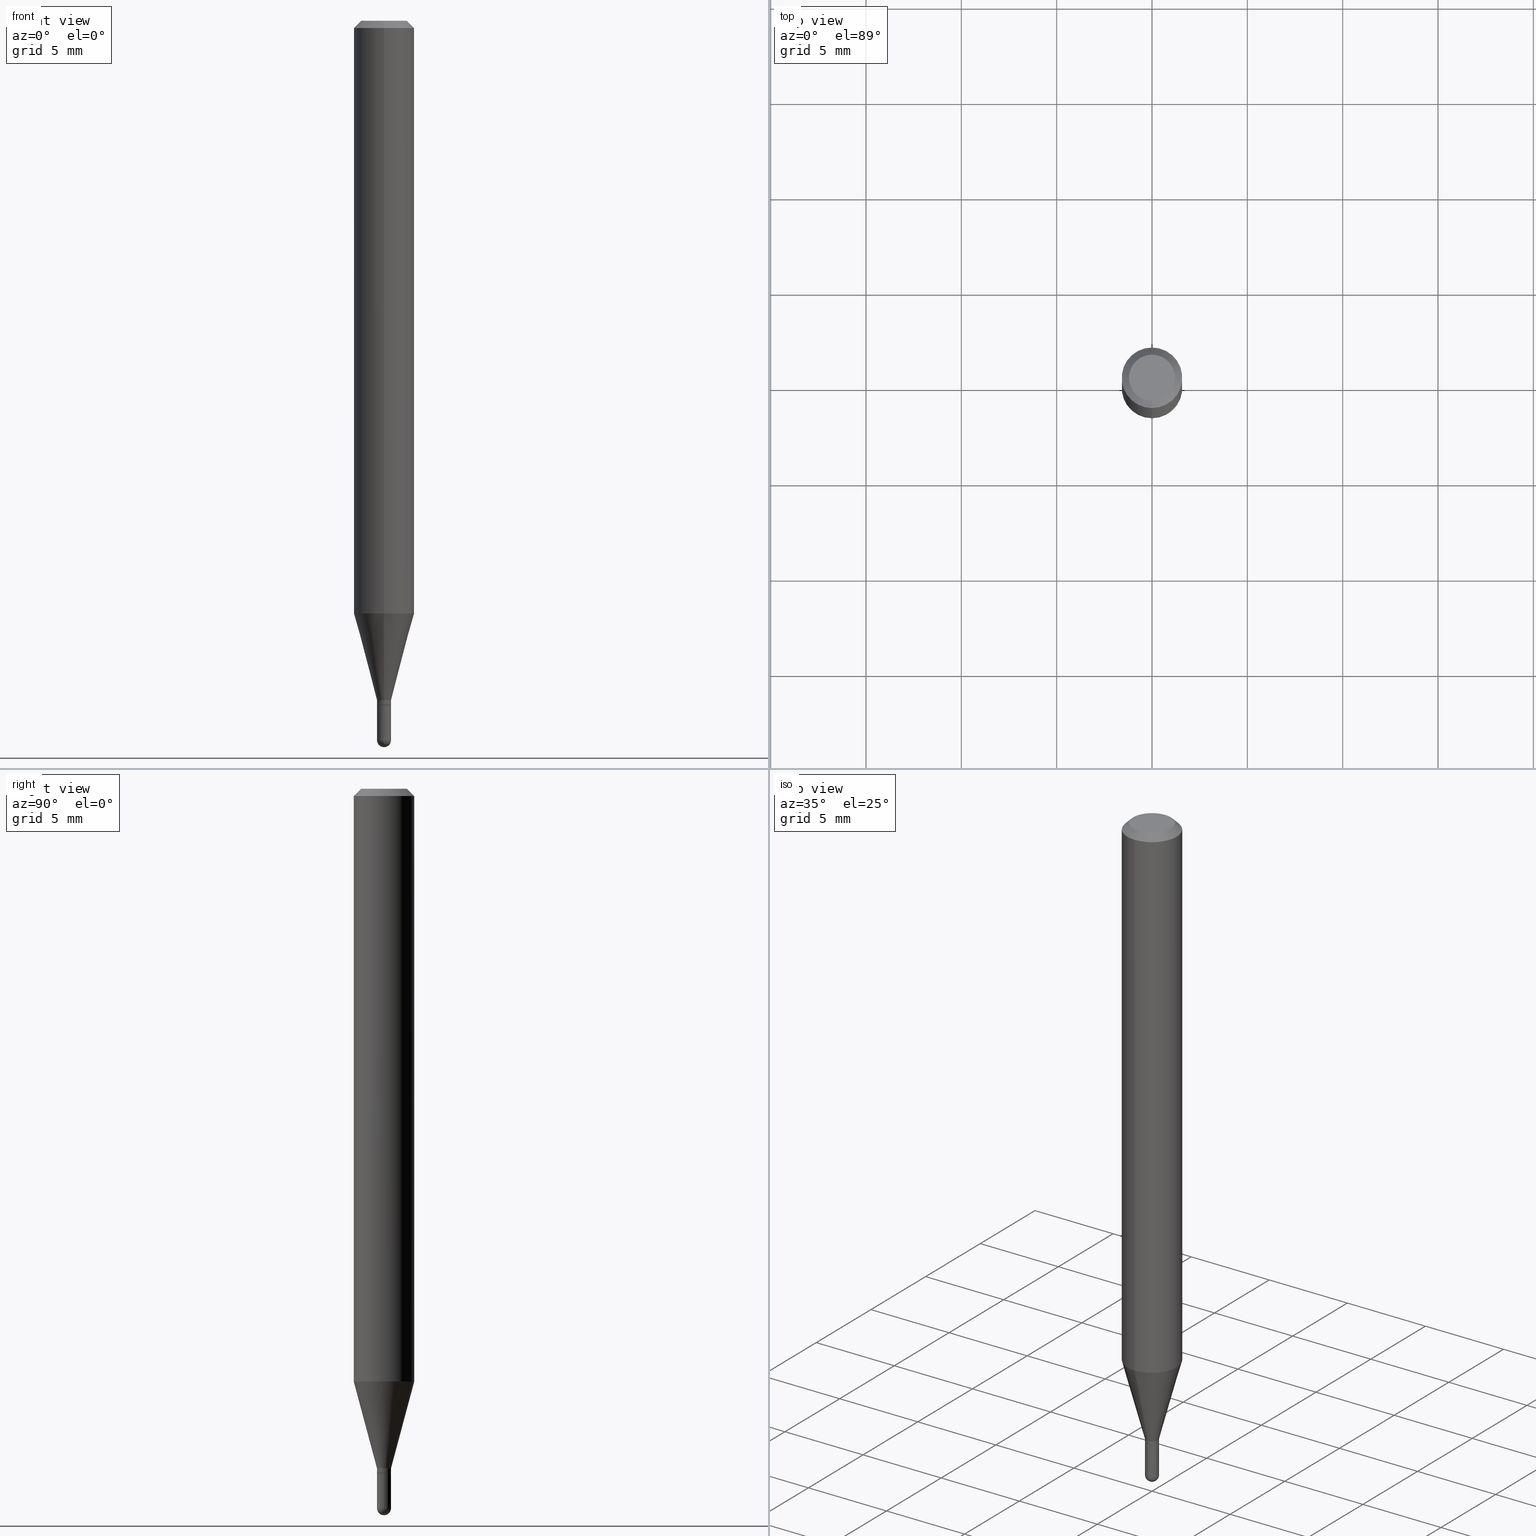
[diagram: canonical four-view strip — front | top / right | iso, engineering-drawing reading convention]
A machine part, canonical four-view strip (front | top / right | iso — engineering-drawing reading convention). The complete STEP part file that produces these views, byte-faithful:
ISO-10303-21;
HEADER;
FILE_DESCRIPTION (( 'STEP AP203' ),
    '1' );
FILE_NAME ('03164.STEP',
    '2024-03-08T18:25:38',
    ( '' ),
    ( '' ),
    'SwSTEP 2.0',
    'SolidWorks 2023',
    '' );
FILE_SCHEMA (( 'CONFIG_CONTROL_DESIGN' ));
ENDSEC;

DATA;
#1 = AXIS2_PLACEMENT_3D ( 'NONE', #476, #196, #314 ) ;
#2 = PLANE ( 'NONE',  #383 ) ;
#3 = CC_DESIGN_APPROVAL ( #62, ( #161 ) ) ;
#4 = PRODUCT_DEFINITION ( 'UNKNOWN', '', #161, #64 ) ;
#5 = DIRECTION ( 'NONE',  ( -6.982962677686265922E-15, -1.000000000000000000, 0.000000000000000000 ) ) ;
#6 = MANIFOLD_SOLID_BREP ( 'Body-Move/Copy2[1]', #174 ) ;
#7 = DIRECTION ( 'NONE',  ( -2.445457456841119029E-29, 3.491497591749743261E-15, 1.000000000000000000 ) ) ;
#8 = ORIENTED_EDGE ( 'NONE', *, *, #93, .F. ) ;
#9 = FACE_OUTER_BOUND ( 'NONE', #55, .T. ) ;
#10 = AXIS2_PLACEMENT_3D ( 'NONE', #311, #158, #5 ) ;
#11 = EDGE_LOOP ( 'NONE', ( #445, #137 ) ) ;
#12 = EDGE_CURVE ( 'NONE', #415, #58, #488, .T. ) ;
#13 = DIRECTION ( 'NONE',  ( -6.982962677686265922E-15, -1.000000000000000000, 0.000000000000000000 ) ) ;
#14 = ORIENTED_EDGE ( 'NONE', *, *, #204, .F. ) ;
#15 = ADVANCED_FACE ( 'NONE', ( #32 ), #464, .F. ) ;
#16 = DIRECTION ( 'NONE',  ( 1.000000000000000000, -6.982962677686265922E-15, 4.883557194083112340E-29 ) ) ;
#17 = ORIENTED_EDGE ( 'NONE', *, *, #120, .F. ) ;
#18 = DIRECTION ( 'NONE',  ( 6.982962677686265922E-15, 1.000000000000000000, -3.483106191921935554E-15 ) ) ;
#19 = ORIENTED_EDGE ( 'NONE', *, *, #390, .T. ) ;
#20 = DIRECTION ( 'NONE',  ( -2.445468806185136597E-29, 3.491481338843145583E-15, 1.000000000000000000 ) ) ;
#21 = EDGE_CURVE ( 'NONE', #334, #225, #457, .T. ) ;
#22 = EDGE_CURVE ( 'NONE', #292, #320, #153, .T. ) ;
#23 = DIRECTION ( 'NONE',  ( 1.000000000000000000, -6.982962677686299054E-15, 0.000000000000000000 ) ) ;
#24 = LINE ( 'NONE', #180, #61 ) ;
#25 = PRODUCT ( '03164', '03164', '', ( #468 ) ) ;
#26 = CARTESIAN_POINT ( 'NONE',  ( 1.012529588264854174E-16, 0.01449999999999506545, -1.413000000000000256 ) ) ;
#27 = ORIENTED_EDGE ( 'NONE', *, *, #12, .F. ) ;
#28 = CIRCLE ( 'NONE', #430, 0.01449999999999992441 ) ;
#29 = FACE_OUTER_BOUND ( 'NONE', #105, .T. ) ;
#30 = EDGE_LOOP ( 'NONE', ( #126, #129, #407, #254 ) ) ;
#31 = CARTESIAN_POINT ( 'NONE',  ( -1.012529588264160223E-16, -0.01450000000000482153, -1.402999999999999803 ) ) ;
#32 = FACE_OUTER_BOUND ( 'NONE', #309, .T. ) ;
#33 = APPROVAL_STATUS ( 'not_yet_approved' ) ;
#34 = DIRECTION ( 'NONE',  ( -6.982962677686265922E-15, -1.000000000000000000, 0.000000000000000000 ) ) ;
#35 = CIRCLE ( 'NONE', #1, 0.04749999999999999362 ) ;
#36 = ADVANCED_FACE ( 'NONE', ( #66 ), #403, .T. ) ;
#37 = DATE_AND_TIME ( #508, #272 ) ;
#38 = EDGE_CURVE ( 'NONE', #331, #41, #337, .T. ) ;
#39 = DIRECTION ( 'NONE',  ( -2.445457456841119029E-29, 3.491497591749743261E-15, 1.000000000000000000 ) ) ;
#40 = CYLINDRICAL_SURFACE ( 'NONE', #497, 0.01449999999999992441 ) ;
#41 = VERTEX_POINT ( 'NONE', #271 ) ;
#42 = DIRECTION ( 'NONE',  ( -6.982962677686265922E-15, -1.000000000000000000, 0.000000000000000000 ) ) ;
#43 = EDGE_CURVE ( 'NONE', #95, #331, #251, .T. ) ;
#44 = CONICAL_SURFACE ( 'NONE', #359, 0.06250000000000000000, 0.7853981633974483900 ) ;
#45 = VECTOR ( 'NONE', #338, 39.37007874015748143 ) ;
#46 = DIRECTION ( 'NONE',  ( -6.982962677686265922E-15, -1.000000000000000000, 4.370956789862821150E-15 ) ) ;
#47 = FACE_OUTER_BOUND ( 'NONE', #49, .T. ) ;
#48 = CARTESIAN_POINT ( 'NONE',  ( 1.030286966852139652E-16, 0.01449999999999992441, -5.062671508037101257E-17 ) ) ;
#49 = EDGE_LOOP ( 'NONE', ( #299, #308, #257, #17, #190 ) ) ;
#50 = CARTESIAN_POINT ( 'NONE',  ( 3.631503920468710854E-29, -5.188371266710256857E-15, -1.485500000000000043 ) ) ;
#51 = CIRCLE ( 'NONE', #78, 0.01450000000000000074 ) ;
#52 = VERTEX_POINT ( 'NONE', #241 ) ;
#53 = CC_DESIGN_SECURITY_CLASSIFICATION ( #71, ( #161 ) ) ;
#54 = LINE ( 'NONE', #48, #264 ) ;
#55 = EDGE_LOOP ( 'NONE', ( #374, #356, #389, #414 ) ) ;
#56 = EDGE_CURVE ( 'NONE', #334, #331, #472, .T. ) ;
#57 = DIRECTION ( 'NONE',  ( -2.445457456841119029E-29, 3.491497591749743261E-15, 1.000000000000000000 ) ) ;
#58 = VERTEX_POINT ( 'NONE', #511 ) ;
#59 = PRODUCT_RELATED_PRODUCT_CATEGORY ( 'detail', '', ( #25 ) ) ;
#60 = CARTESIAN_POINT ( 'NONE',  ( 3.455431386516501068E-29, -4.933486097142387201E-15, -1.413000000000000256 ) ) ;
#61 = VECTOR ( 'NONE', #454, 39.37007874015748854 ) ;
#62 = APPROVAL ( #33, 'UNSPECIFIED' ) ;
#63 =( LENGTH_UNIT ( ) NAMED_UNIT ( * ) SI_UNIT ( $, .METRE. ) );
#64 = DESIGN_CONTEXT ( 'detailed design', #83, 'design' ) ;
#65 = ORIENTED_EDGE ( 'NONE', *, *, #120, .T. ) ;
#66 = FACE_OUTER_BOUND ( 'NONE', #453, .T. ) ;
#67 = CARTESIAN_POINT ( 'NONE',  ( 3.632743911588020939E-29, -5.186595528851492996E-15, -1.485500000000000043 ) ) ;
#68 = CARTESIAN_POINT ( 'NONE',  ( 3.632743911588020939E-29, -5.186595528851492996E-15, -1.485500000000000043 ) ) ;
#69 = AXIS2_PLACEMENT_3D ( 'NONE', #318, #280, #352 ) ;
#70 = AXIS2_PLACEMENT_3D ( 'NONE', #368, #16, #13 ) ;
#71 = SECURITY_CLASSIFICATION ( '', '', #433 ) ;
#72 = DIRECTION ( 'NONE',  ( 1.000000000000000000, -6.982962677686299054E-15, 0.000000000000000000 ) ) ;
#73 = PERSON_AND_ORGANIZATION_ROLE ( 'design_supplier' ) ;
#74 = DIRECTION ( 'NONE',  ( 5.024295867788190974E-15, 0.7071067811865681119, 0.7071067811865270336 ) ) ;
#75 = ADVANCED_FACE ( 'NONE', ( #428 ), #40, .T. ) ;
#76 = APPROVAL_ROLE ( '' ) ;
#77 = CARTESIAN_POINT ( 'NONE',  ( 0.01450000000000000074, -5.161282289144880799E-15, -1.485500000000000043 ) ) ;
#78 = AXIS2_PLACEMENT_3D ( 'NONE', #121, #283, #313 ) ;
#79 = CC_DESIGN_PERSON_AND_ORGANIZATION_ASSIGNMENT ( #122, #357, ( #161 ) ) ;
#80 =( GEOMETRIC_REPRESENTATION_CONTEXT ( 3 ) GLOBAL_UNCERTAINTY_ASSIGNED_CONTEXT ( ( #236 ) ) GLOBAL_UNIT_ASSIGNED_CONTEXT ( ( #222, #418, #379 ) ) REPRESENTATION_CONTEXT ( 'NONE', 'WORKASPACE' ) );
#81 = APPLICATION_PROTOCOL_DEFINITION ( 'international standard', 'config_control_design', 1994, #83 ) ;
#82 = DIRECTION ( 'NONE',  ( 2.445457456841119029E-29, -3.491497591749743261E-15, -1.000000000000000000 ) ) ;
#83 = APPLICATION_CONTEXT ( 'configuration controlled 3d designs of mechanical parts and assemblies' ) ;
#84 = FACE_OUTER_BOUND ( 'NONE', #212, .T. ) ;
#85 = PERSON_AND_ORGANIZATION_ROLE ( 'creator' ) ;
#86 = CARTESIAN_POINT ( 'NONE',  ( 3.454208657788081865E-29, -4.931740348346512716E-15, -1.412500000000000311 ) ) ;
#87 = CLOSED_SHELL ( 'NONE', ( #483, #277, #346, #440, #417, #495, #324, #131, #127, #349, #36, #75 ) ) ;
#88 = AXIS2_PLACEMENT_3D ( 'NONE', #319, #247, #168 ) ;
#89 = DIRECTION ( 'NONE',  ( 1.000000000000000000, -6.982962677686299054E-15, 0.000000000000000000 ) ) ;
#90 = APPROVAL ( #344, 'UNSPECIFIED' ) ;
#91 = CARTESIAN_POINT ( 'NONE',  ( 0.000000000000000000, 0.000000000000000000, 0.000000000000000000 ) ) ;
#92 = ORIENTED_EDGE ( 'NONE', *, *, #134, .F. ) ;
#93 = EDGE_CURVE ( 'NONE', #487, #148, #270, .T. ) ;
#94 = DIRECTION ( 'NONE',  ( -6.982962677686265922E-15, -1.000000000000000000, 3.483106191921935554E-15 ) ) ;
#95 = VERTEX_POINT ( 'NONE', #77 ) ;
#96 = EDGE_CURVE ( 'NONE', #148, #487, #238, .T. ) ;
#97 = FACE_OUTER_BOUND ( 'NONE', #500, .T. ) ;
#98 = AXIS2_PLACEMENT_3D ( 'NONE', #67, #20, #333 ) ;
#99 = ORIENTED_EDGE ( 'NONE', *, *, #456, .F. ) ;
#100 = CYLINDRICAL_SURFACE ( 'NONE', #218, 0.01450000000000000074 ) ;
#101 = EDGE_CURVE ( 'NONE', #336, #214, #28, .T. ) ;
#102 = DIRECTION ( 'NONE',  ( -6.982962677686265922E-15, -1.000000000000000000, 0.000000000000000000 ) ) ;
#103 = EDGE_LOOP ( 'NONE', ( #182, #447, #366, #92 ) ) ;
#104 = DIRECTION ( 'NONE',  ( -6.982962677686265922E-15, -1.000000000000000000, 3.491497591749743261E-15 ) ) ;
#105 = EDGE_LOOP ( 'NONE', ( #152, #185, #409, #65, #27 ) ) ;
#106 = CIRCLE ( 'NONE', #245, 0.06250000000000000000 ) ;
#107 = LENGTH_MEASURE_WITH_UNIT ( LENGTH_MEASURE( 0.02539999999999999897 ), #63 );
#108 = DIRECTION ( 'NONE',  ( 1.000000000000000000, -6.982962677686299054E-15, 0.000000000000000000 ) ) ;
#109 = ORIENTED_EDGE ( 'NONE', *, *, #221, .T. ) ;
#110 = DIRECTION ( 'NONE',  ( -2.445457456841119029E-29, 3.491497591749743261E-15, 1.000000000000000000 ) ) ;
#111 = DIRECTION ( 'NONE',  ( -6.982962677686265922E-15, -1.000000000000000000, 0.000000000000000000 ) ) ;
#112 = AXIS2_PLACEMENT_3D ( 'NONE', #133, #446, #89 ) ;
#113 = CARTESIAN_POINT ( 'NONE',  ( 0.000000000000000000, 0.000000000000000000, 0.000000000000000000 ) ) ;
#114 = CARTESIAN_POINT ( 'NONE',  ( 2.735589532676705169E-16, 0.01449999999999502555, -1.402999999999999803 ) ) ;
#115 = COORDINATED_UNIVERSAL_TIME_OFFSET ( 5, 0, .BEHIND. ) ;
#116 = CARTESIAN_POINT ( 'NONE',  ( 0.01450000000000000074, -1.012529588264508678E-16, 7.070456324904107110E-31 ) ) ;
#117 = APPROVAL_ROLE ( '' ) ;
#118 = DIRECTION ( 'NONE',  ( -2.445457456841119029E-29, 3.491497591749743261E-15, 1.000000000000000000 ) ) ;
#119 = DIRECTION ( 'NONE',  ( 0.000000000000000000, 0.000000000000000000, 1.000000000000000000 ) ) ;
#120 = EDGE_CURVE ( 'NONE', #95, #58, #350, .T. ) ;
#121 = CARTESIAN_POINT ( 'NONE',  ( 3.455447423139598357E-29, -4.933463131785365512E-15, -1.413000000000000256 ) ) ;
#122 = PERSON_AND_ORGANIZATION ( #438, #145 ) ;
#123 = DIRECTION ( 'NONE',  ( 4.937700262164548042E-15, 0.7071067811865451302, -0.7071067811865499042 ) ) ;
#124 = CARTESIAN_POINT ( 'NONE',  ( 4.440892098500927901E-16, 0.06249999999999995837, -0.01499999999999997863 ) ) ;
#125 = AXIS2_PLACEMENT_3D ( 'NONE', #164, #39, #317 ) ;
#126 = ORIENTED_EDGE ( 'NONE', *, *, #56, .F. ) ;
#127 = ADVANCED_FACE ( 'NONE', ( #507 ), #2, .F. ) ;
#128 = CARTESIAN_POINT ( 'NONE',  ( 3.668186185261620372E-31, -5.237246387624531296E-17, -0.01499999999999976179 ) ) ;
#129 = ORIENTED_EDGE ( 'NONE', *, *, #21, .T. ) ;
#130 = DIRECTION ( 'NONE',  ( -2.445457456841119029E-29, 3.491497591749742866E-15, 1.000000000000000000 ) ) ;
#131 = ADVANCED_FACE ( 'NONE', ( #284 ), #44, .T. ) ;
#132 = VERTEX_POINT ( 'NONE', #355 ) ;
#133 = CARTESIAN_POINT ( 'NONE',  ( 3.632743911588020939E-29, -5.186595528851492996E-15, -1.485500000000000043 ) ) ;
#134 = EDGE_CURVE ( 'NONE', #52, #336, #394, .T. ) ;
#135 = VECTOR ( 'NONE', #207, 39.37007874015748143 ) ;
#136 = LOCAL_TIME ( 13, 25, 38.00000000000000000, #115 ) ;
#137 = ORIENTED_EDGE ( 'NONE', *, *, #395, .F. ) ;
#138 = CYLINDRICAL_SURFACE ( 'NONE', #329, 0.01450000000000000074 ) ;
#139 = EDGE_LOOP ( 'NONE', ( #345, #169 ) ) ;
#140 = CARTESIAN_POINT ( 'NONE',  ( 3.668186185261620372E-31, -5.237246387624531296E-17, -0.01499999999999976179 ) ) ;
#141 = VERTEX_POINT ( 'NONE', #163 ) ;
#142 = CARTESIAN_POINT ( 'NONE',  ( 0.000000000000000000, 0.000000000000000000, 0.000000000000000000 ) ) ;
#143 = DIRECTION ( 'NONE',  ( -1.000000000000000000, 6.982962677686265922E-15, -4.883557194083112340E-29 ) ) ;
#144 = AXIS2_PLACEMENT_3D ( 'NONE', #378, #461, #23 ) ;
#145 = ORGANIZATION ( 'UNSPECIFIED', 'UNSPECIFIED', '' ) ;
#146 = EDGE_CURVE ( 'NONE', #292, #340, #426, .T. ) ;
#147 = CYLINDRICAL_SURFACE ( 'NONE', #297, 0.06250000000000000000 ) ;
#148 = VERTEX_POINT ( 'NONE', #400 ) ;
#149 = FACE_OUTER_BOUND ( 'NONE', #382, .T. ) ;
#150 = DIRECTION ( 'NONE',  ( -2.445468806185136597E-29, 3.491481338843145583E-15, 1.000000000000000000 ) ) ;
#151 = COORDINATED_UNIVERSAL_TIME_OFFSET ( 5, 0, .BEHIND. ) ;
#152 = ORIENTED_EDGE ( 'NONE', *, *, #260, .F. ) ;
#153 = CIRCLE ( 'NONE', #193, 0.04749999999999999362 ) ;
#154 = CIRCLE ( 'NONE', #112, 0.01450000000000000074 ) ;
#155 = CALENDAR_DATE ( 2024, 8, 3 ) ;
#156 = CARTESIAN_POINT ( 'NONE',  ( 3.316907271900976096E-16, 0.04749999999999999362, -4.610142825763763803E-17 ) ) ;
#157 = PERSON_AND_ORGANIZATION ( #438, #145 ) ;
#158 = DIRECTION ( 'NONE',  ( -2.445457456841119029E-29, 3.491497591749743261E-15, 1.000000000000000000 ) ) ;
#159 = DATE_AND_TIME ( #512, #136 ) ;
#160 = CARTESIAN_POINT ( 'NONE',  ( 1.030286966852481820E-16, 0.01449999999999494402, -1.412500000000000311 ) ) ;
#161 = PRODUCT_DEFINITION_FORMATION_WITH_SPECIFIED_SOURCE ( 'ANY', '', #25, .NOT_KNOWN. ) ;
#162 = DIRECTION ( 'NONE',  ( 1.000000000000000000, 0.000000000000000000, 0.000000000000000000 ) ) ;
#163 = CARTESIAN_POINT ( 'NONE',  ( -4.364351673553912750E-16, -0.06250000000000005551, -0.01499999999999954321 ) ) ;
#164 = CARTESIAN_POINT ( 'NONE',  ( 3.430976811948089539E-29, -4.898571121224889607E-15, -1.402999999999999803 ) ) ;
#165 = DIRECTION ( 'NONE',  ( -6.982962677686265922E-15, -1.000000000000000000, 0.000000000000000000 ) ) ;
#166 = ORIENTED_EDGE ( 'NONE', *, *, #96, .F. ) ;
#167 = VECTOR ( 'NONE', #408, 39.37007874015748143 ) ;
#168 = DIRECTION ( 'NONE',  ( -6.982962677686265922E-15, -1.000000000000000000, 0.000000000000000000 ) ) ;
#169 = ORIENTED_EDGE ( 'NONE', *, *, #203, .T. ) ;
#170 = DIRECTION ( 'NONE',  ( 1.000000000000000000, -6.982962677686265922E-15, 4.883557194083112340E-29 ) ) ;
#171 = ORIENTED_EDGE ( 'NONE', *, *, #12, .T. ) ;
#172 = DIRECTION ( 'NONE',  ( -6.982962677686265922E-15, -1.000000000000000000, 0.000000000000000000 ) ) ;
#173 = EDGE_LOOP ( 'NONE', ( #399, #482, #412, #8 ) ) ;
#174 = CLOSED_SHELL ( 'NONE', ( #381, #226, #15, #261, #475 ) ) ;
#175 = CARTESIAN_POINT ( 'NONE',  ( 4.440892098500625669E-16, 0.06250000000000000000, -2.182185994843589538E-16 ) ) ;
#176 = CIRCLE ( 'NONE', #315, 0.01400000000000000203 ) ;
#177 = ORIENTED_EDGE ( 'NONE', *, *, #458, .F. ) ;
#178 = CARTESIAN_POINT ( 'NONE',  ( -4.287811248607203282E-16, -0.06250000000000005551, -0.01499999999999954321 ) ) ;
#179 = ORIENTED_EDGE ( 'NONE', *, *, #22, .F. ) ;
#180 = CARTESIAN_POINT ( 'NONE',  ( 1.030286966852482683E-16, 0.01449999999999502555, -1.402999999999999803 ) ) ;
#181 = EDGE_CURVE ( 'NONE', #198, #52, #209, .T. ) ;
#182 = ORIENTED_EDGE ( 'NONE', *, *, #204, .T. ) ;
#183 = EDGE_CURVE ( 'NONE', #214, #336, #348, .T. ) ;
#184 = CARTESIAN_POINT ( 'NONE',  ( -9.776147748757317543E-17, -0.01400000000000493558, -1.413000000000000256 ) ) ;
#185 = ORIENTED_EDGE ( 'NONE', *, *, #493, .T. ) ;
#186 = AXIS2_PLACEMENT_3D ( 'NONE', #68, #269, #72 ) ;
#187 = CONICAL_SURFACE ( 'NONE', #422, 0.06250000000000000000, 0.7853981633974483900 ) ;
#188 = ORIENTED_EDGE ( 'NONE', *, *, #471, .F. ) ;
#189 = PERSON_AND_ORGANIZATION ( #438, #145 ) ;
#190 = ORIENTED_EDGE ( 'NONE', *, *, #43, .T. ) ;
#191 = PERSON_AND_ORGANIZATION ( #438, #145 ) ;
#192 = DIRECTION ( 'NONE',  ( -2.445457456841119029E-29, 3.491497591749743261E-15, 1.000000000000000000 ) ) ;
#193 = AXIS2_PLACEMENT_3D ( 'NONE', #267, #305, #259 ) ;
#194 = AXIS2_PLACEMENT_3D ( 'NONE', #484, #481, #172 ) ;
#195 = SHAPE_DEFINITION_REPRESENTATION ( #396, #220 ) ;
#196 = DIRECTION ( 'NONE',  ( -2.445457456841119029E-29, 3.491497591749743261E-15, 1.000000000000000000 ) ) ;
#197 = DIRECTION ( 'NONE',  ( -2.445457456841119029E-29, 3.491497591749743261E-15, 1.000000000000000000 ) ) ;
#198 = VERTEX_POINT ( 'NONE', #160 ) ;
#199 = DATE_TIME_ROLE ( 'creation_date' ) ;
#200 = DIRECTION ( 'NONE',  ( 1.000000000000000000, -7.105427357601001070E-15, 4.926315508542082329E-29 ) ) ;
#201 = LOCAL_TIME ( 13, 25, 38.00000000000000000, #347 ) ;
#202 = CARTESIAN_POINT ( 'NONE',  ( 3.430976811948089539E-29, -4.898571121224889607E-15, -1.402999999999999803 ) ) ;
#203 = EDGE_CURVE ( 'NONE', #320, #292, #35, .T. ) ;
#204 = EDGE_CURVE ( 'NONE', #52, #198, #296, .T. ) ;
#205 = EDGE_CURVE ( 'NONE', #58, #415, #51, .T. ) ;
#206 = DIRECTION ( 'NONE',  ( 1.000000000000000000, -6.982962677686266711E-15, 4.876176775795935793E-29 ) ) ;
#207 = DIRECTION ( 'NONE',  ( -2.445457456841119029E-29, 3.491497591749742866E-15, 1.000000000000000000 ) ) ;
#208 = ORIENTED_EDGE ( 'NONE', *, *, #221, .F. ) ;
#209 = CIRCLE ( 'NONE', #229, 0.01449999999999992614 ) ;
#210 = CC_DESIGN_APPROVAL ( #387, ( #4 ) ) ;
#211 = SPHERICAL_SURFACE ( 'NONE', #230, 0.01449999999999990186 ) ;
#212 = EDGE_LOOP ( 'NONE', ( #421, #451, #328, #467 ) ) ;
#213 = DIRECTION ( 'NONE',  ( -6.982962677686265922E-15, -1.000000000000000000, 3.491497591749743261E-15 ) ) ;
#214 = VERTEX_POINT ( 'NONE', #114 ) ;
#215 = CARTESIAN_POINT ( 'NONE',  ( -1.012529588264160223E-16, -0.01450000000000482153, -1.402999999999999803 ) ) ;
#216 = ORIENTED_EDGE ( 'NONE', *, *, #439, .T. ) ;
#217 = DIRECTION ( 'NONE',  ( -2.445457456841119029E-29, 3.491497591749743261E-15, 1.000000000000000000 ) ) ;
#218 = AXIS2_PLACEMENT_3D ( 'NONE', #91, #255, #206 ) ;
#219 = DIRECTION ( 'NONE',  ( -6.982962677686266711E-15, -1.000000000000000000, 0.000000000000000000 ) ) ;
#220 = ADVANCED_BREP_SHAPE_REPRESENTATION ( '03164', ( #6, #353, #410 ), #80 ) ;
#221 = EDGE_CURVE ( 'NONE', #132, #198, #470, .T. ) ;
#222 =( CONVERSION_BASED_UNIT ( 'INCH', #107 ) LENGTH_UNIT ( ) NAMED_UNIT ( #285 ) );
#223 = ORIENTED_EDGE ( 'NONE', *, *, #398, .F. ) ;
#224 = DIRECTION ( 'NONE',  ( -2.445457456841119029E-29, 3.491497591749743261E-15, 1.000000000000000000 ) ) ;
#225 = VERTEX_POINT ( 'NONE', #434 ) ;
#226 = ADVANCED_FACE ( 'NONE', ( #84 ), #413, .T. ) ;
#227 = APPLICATION_PROTOCOL_DEFINITION ( 'international standard', 'config_control_design', 1994, #372 ) ;
#228 = DIRECTION ( 'NONE',  ( -1.000000000000000000, 6.982962677686265922E-15, -4.876176775795935793E-29 ) ) ;
#229 = AXIS2_PLACEMENT_3D ( 'NONE', #86, #118, #34 ) ;
#230 = AXIS2_PLACEMENT_3D ( 'NONE', #50, #170, #370 ) ;
#231 = CARTESIAN_POINT ( 'NONE',  ( 0.000000000000000000, 0.000000000000000000, 0.000000000000000000 ) ) ;
#232 = ORIENTED_EDGE ( 'NONE', *, *, #93, .T. ) ;
#233 = DATE_AND_TIME ( #354, #449 ) ;
#234 = CARTESIAN_POINT ( 'NONE',  ( 3.668186185261620372E-31, -5.237246387624531296E-17, -0.01499999999999976179 ) ) ;
#235 = DATE_TIME_ROLE ( 'classification_date' ) ;
#236 = UNCERTAINTY_MEASURE_WITH_UNIT (LENGTH_MEASURE( 1.000000000000000082E-05 ), #222, 'distance_accuracy_value', 'NONE');
#237 = DIRECTION ( 'NONE',  ( -2.445457456841119029E-29, 3.491497591749743261E-15, 1.000000000000000000 ) ) ;
#238 = CIRCLE ( 'NONE', #69, 0.06250000000000000000 ) ;
#239 = VECTOR ( 'NONE', #268, 39.37007874015748854 ) ;
#240 = EDGE_CURVE ( 'NONE', #148, #141, #411, .T. ) ;
#241 = CARTESIAN_POINT ( 'NONE',  ( -1.012529588264161333E-16, -0.01450000000000490653, -1.412500000000000311 ) ) ;
#242 = APPROVAL_STATUS ( 'not_yet_approved' ) ;
#243 = PERSON_AND_ORGANIZATION ( #438, #145 ) ;
#244 = CARTESIAN_POINT ( 'NONE',  ( 0.000000000000000000, 0.000000000000000000, 0.000000000000000000 ) ) ;
#245 = AXIS2_PLACEMENT_3D ( 'NONE', #140, #217, #452 ) ;
#246 = FACE_OUTER_BOUND ( 'NONE', #11, .T. ) ;
#247 = DIRECTION ( 'NONE',  ( -2.445457456841119029E-29, 3.491497591749743261E-15, 1.000000000000000000 ) ) ;
#248 = ORIENTED_EDGE ( 'NONE', *, *, #96, .T. ) ;
#249 = DIRECTION ( 'NONE',  ( -2.445457456841119029E-29, 3.491497591749742866E-15, 1.000000000000000000 ) ) ;
#250 = ORIENTED_EDGE ( 'NONE', *, *, #240, .T. ) ;
#251 = CIRCLE ( 'NONE', #186, 0.01450000000000000074 ) ;
#252 = AXIS2_PLACEMENT_3D ( 'NONE', #335, #110, #102 ) ;
#253 = CYLINDRICAL_SURFACE ( 'NONE', #505, 0.06250000000000000000 ) ;
#254 = ORIENTED_EDGE ( 'NONE', *, *, #38, .F. ) ;
#255 = DIRECTION ( 'NONE',  ( -2.445468806185136597E-29, 3.491481338843145583E-15, 1.000000000000000000 ) ) ;
#256 = CC_DESIGN_PERSON_AND_ORGANIZATION_ASSIGNMENT ( #316, #392, ( #71 ) ) ;
#257 = ORIENTED_EDGE ( 'NONE', *, *, #205, .F. ) ;
#258 = FACE_OUTER_BOUND ( 'NONE', #265, .T. ) ;
#259 = DIRECTION ( 'NONE',  ( -6.982962677686266711E-15, -1.000000000000000000, 3.491497591749742866E-15 ) ) ;
#260 = EDGE_CURVE ( 'NONE', #41, #415, #294, .T. ) ;
#261 = ADVANCED_FACE ( 'NONE', ( #325 ), #211, .T. ) ;
#262 = AXIS2_PLACEMENT_3D ( 'NONE', #60, #306, #111 ) ;
#263 = LINE ( 'NONE', #184, #474 ) ;
#264 = VECTOR ( 'NONE', #249, 39.37007874015748143 ) ;
#265 = EDGE_LOOP ( 'NONE', ( #442, #216, #166, #188 ) ) ;
#266 = LINE ( 'NONE', #31, #239 ) ;
#267 = CARTESIAN_POINT ( 'NONE',  ( -5.856611750149541241E-45, 8.361767146779234630E-31, 2.394894147009503046E-16 ) ) ;
#268 = DIRECTION ( 'NONE',  ( -1.807323732225331717E-15, -0.2588190451025184080, 0.9659258262890689783 ) ) ;
#269 = DIRECTION ( 'NONE',  ( -2.445468806185136597E-29, 3.491481338843145583E-15, 1.000000000000000000 ) ) ;
#270 = CIRCLE ( 'NONE', #393, 0.06250000000000000000 ) ;
#271 = CARTESIAN_POINT ( 'NONE',  ( -0.01450000000000000074, -4.957000633633214635E-15, -1.485500000000000043 ) ) ;
#272 = LOCAL_TIME ( 13, 25, 38.00000000000000000, #503 ) ;
#273 = DATE_AND_TIME ( #427, #201 ) ;
#274 = CARTESIAN_POINT ( 'NONE',  ( 3.631503920468710854E-29, -5.188371266710256857E-15, -1.485500000000000043 ) ) ;
#275 = APPROVAL_DATE_TIME ( #233, #62 ) ;
#276 = DIRECTION ( 'NONE',  ( 7.105427357601001070E-15, 1.000000000000000000, 0.000000000000000000 ) ) ;
#277 = ADVANCED_FACE ( 'NONE', ( #286 ), #281, .T. ) ;
#278 = EDGE_CURVE ( 'NONE', #487, #340, #477, .T. ) ;
#279 = APPROVAL_DATE_TIME ( #37, #90 ) ;
#280 = DIRECTION ( 'NONE',  ( -2.445457456841119029E-29, 3.491497591749743261E-15, 1.000000000000000000 ) ) ;
#281 = CONICAL_SURFACE ( 'NONE', #194, 0.01400000000000000203, 0.7853981633974739252 ) ;
#282 = APPROVAL_ROLE ( '' ) ;
#283 = DIRECTION ( 'NONE',  ( -2.445468806185136597E-29, 3.491481338843145583E-15, 1.000000000000000000 ) ) ;
#284 = FACE_OUTER_BOUND ( 'NONE', #416, .T. ) ;
#285 = DIMENSIONAL_EXPONENTS ( 1.000000000000000000, 0.000000000000000000, 0.000000000000000000, 0.000000000000000000, 0.000000000000000000, 0.000000000000000000, 0.000000000000000000 ) ;
#286 = FACE_OUTER_BOUND ( 'NONE', #494, .T. ) ;
#287 = VECTOR ( 'NONE', #431, 39.37007874015748143 ) ;
#288 = CIRCLE ( 'NONE', #339, 0.06250000000000000000 ) ;
#289 = CARTESIAN_POINT ( 'NONE',  ( 0.000000000000000000, 0.000000000000000000, 0.000000000000000000 ) ) ;
#290 = VERTEX_POINT ( 'NONE', #406 ) ;
#291 = CARTESIAN_POINT ( 'NONE',  ( -0.01450000000000000074, 1.030286966852145322E-16, -7.132455880869613131E-31 ) ) ;
#292 = VERTEX_POINT ( 'NONE', #478 ) ;
#293 = EDGE_CURVE ( 'NONE', #225, #95, #154, .T. ) ;
#294 = LINE ( 'NONE', #291, #167 ) ;
#295 = ORIENTED_EDGE ( 'NONE', *, *, #181, .T. ) ;
#296 = CIRCLE ( 'NONE', #10, 0.01449999999999992614 ) ;
#297 = AXIS2_PLACEMENT_3D ( 'NONE', #231, #499, #492 ) ;
#298 = DIRECTION ( 'NONE',  ( -2.445457456841119029E-29, 3.491497591749742866E-15, 1.000000000000000000 ) ) ;
#299 = ORIENTED_EDGE ( 'NONE', *, *, #38, .T. ) ;
#300 = CYLINDRICAL_SURFACE ( 'NONE', #404, 0.01449999999999992441 ) ;
#301 = EDGE_CURVE ( 'NONE', #198, #214, #54, .T. ) ;
#302 = ORIENTED_EDGE ( 'NONE', *, *, #395, .T. ) ;
#303 = AXIS2_PLACEMENT_3D ( 'NONE', #455, #150, #108 ) ;
#304 = CARTESIAN_POINT ( 'NONE',  ( -0.01450000000000000074, -4.957000633633214635E-15, -1.413000000000000256 ) ) ;
#305 = DIRECTION ( 'NONE',  ( -2.445457456841119029E-29, 3.491497591749743261E-15, 1.000000000000000000 ) ) ;
#306 = DIRECTION ( 'NONE',  ( -2.445457456841119029E-29, 3.491497591749743261E-15, 1.000000000000000000 ) ) ;
#307 = CARTESIAN_POINT ( 'NONE',  ( 0.000000000000000000, 0.000000000000000000, 0.000000000000000000 ) ) ;
#308 = ORIENTED_EDGE ( 'NONE', *, *, #260, .T. ) ;
#309 = EDGE_LOOP ( 'NONE', ( #502, #171 ) ) ;
#310 = PERSON_AND_ORGANIZATION ( #438, #145 ) ;
#311 = CARTESIAN_POINT ( 'NONE',  ( 3.454208657788081865E-29, -4.931740348346512716E-15, -1.412500000000000311 ) ) ;
#312 = DATE_AND_TIME ( #155, #498 ) ;
#313 = DIRECTION ( 'NONE',  ( 1.000000000000000000, -6.982962677686299054E-15, 0.000000000000000000 ) ) ;
#314 = DIRECTION ( 'NONE',  ( -6.982962677686266711E-15, -1.000000000000000000, 3.491497591749742866E-15 ) ) ;
#315 = AXIS2_PLACEMENT_3D ( 'NONE', #364, #7, #165 ) ;
#316 = PERSON_AND_ORGANIZATION ( #438, #145 ) ;
#317 = DIRECTION ( 'NONE',  ( -6.982962677686265922E-15, -1.000000000000000000, 0.000000000000000000 ) ) ;
#318 = CARTESIAN_POINT ( 'NONE',  ( 2.992901381067487827E-29, -4.273109693692998475E-15, -1.223861561236694095 ) ) ;
#319 = CARTESIAN_POINT ( 'NONE',  ( 3.455431386516501068E-29, -4.933486097142387201E-15, -1.413000000000000256 ) ) ;
#320 = VERTEX_POINT ( 'NONE', #436 ) ;
#321 = CONICAL_SURFACE ( 'NONE', #252, 0.01449999999999992441, 0.2617993877991505181 ) ;
#322 = CARTESIAN_POINT ( 'NONE',  ( -4.364351673553916201E-16, -0.06250000000000000000, 2.182185994843589538E-16 ) ) ;
#323 = ORIENTED_EDGE ( 'NONE', *, *, #146, .T. ) ;
#324 = ADVANCED_FACE ( 'NONE', ( #97 ), #253, .T. ) ;
#325 = FACE_OUTER_BOUND ( 'NONE', #30, .T. ) ;
#326 = ORIENTED_EDGE ( 'NONE', *, *, #278, .F. ) ;
#327 = CARTESIAN_POINT ( 'NONE',  ( 3.666343222598739767E-29, -5.239885615052863969E-15, -1.499999999999999778 ) ) ;
#328 = ORIENTED_EDGE ( 'NONE', *, *, #43, .F. ) ;
#329 = AXIS2_PLACEMENT_3D ( 'NONE', #142, #341, #423 ) ;
#330 = FACE_OUTER_BOUND ( 'NONE', #103, .T. ) ;
#331 = VERTEX_POINT ( 'NONE', #365 ) ;
#332 = CC_DESIGN_DATE_AND_TIME_ASSIGNMENT ( #312, #199, ( #4 ) ) ;
#333 = DIRECTION ( 'NONE',  ( 1.000000000000000000, -6.982962677686299054E-15, 0.000000000000000000 ) ) ;
#334 = VERTEX_POINT ( 'NONE', #327 ) ;
#335 = CARTESIAN_POINT ( 'NONE',  ( 3.430976811948089539E-29, -4.898571121224889607E-15, -1.402999999999999803 ) ) ;
#336 = VERTEX_POINT ( 'NONE', #215 ) ;
#337 = CIRCLE ( 'NONE', #144, 0.01450000000000000074 ) ;
#338 = DIRECTION ( 'NONE',  ( -4.851104656540964275E-15, -0.7071067811865500152, -0.7071067811865450192 ) ) ;
#339 = AXIS2_PLACEMENT_3D ( 'NONE', #128, #444, #94 ) ;
#340 = VERTEX_POINT ( 'NONE', #124 ) ;
#341 = DIRECTION ( 'NONE',  ( -2.445468806185136597E-29, 3.491481338843145583E-15, 1.000000000000000000 ) ) ;
#342 = ORIENTED_EDGE ( 'NONE', *, *, #181, .F. ) ;
#343 = CC_DESIGN_PERSON_AND_ORGANIZATION_ASSIGNMENT ( #429, #73, ( #161 ) ) ;
#344 = APPROVAL_STATUS ( 'not_yet_approved' ) ;
#345 = ORIENTED_EDGE ( 'NONE', *, *, #22, .T. ) ;
#346 = ADVANCED_FACE ( 'NONE', ( #9 ), #187, .T. ) ;
#347 = COORDINATED_UNIVERSAL_TIME_OFFSET ( 5, 0, .BEHIND. ) ;
#348 = CIRCLE ( 'NONE', #125, 0.01449999999999992441 ) ;
#349 = ADVANCED_FACE ( 'NONE', ( #246 ), #486, .F. ) ;
#350 = LINE ( 'NONE', #116, #287 ) ;
#351 = AXIS2_PLACEMENT_3D ( 'NONE', #420, #388, #501 ) ;
#352 = DIRECTION ( 'NONE',  ( -6.982962677686265922E-15, -1.000000000000000000, 4.370956789862821150E-15 ) ) ;
#353 = MANIFOLD_SOLID_BREP ( 'Body-Move/Copy2[2]', #87 ) ;
#354 = CALENDAR_DATE ( 2024, 8, 3 ) ;
#355 = CARTESIAN_POINT ( 'NONE',  ( 1.012523398458485463E-16, 0.01399999999999506674, -1.413000000000000256 ) ) ;
#356 = ORIENTED_EDGE ( 'NONE', *, *, #456, .T. ) ;
#357 = PERSON_AND_ORGANIZATION_ROLE ( 'creator' ) ;
#358 = DIRECTION ( 'NONE',  ( -6.982962677686265922E-15, -1.000000000000000000, 3.491497591749743261E-15 ) ) ;
#359 = AXIS2_PLACEMENT_3D ( 'NONE', #234, #82, #509 ) ;
#360 = APPROVAL_PERSON_ORGANIZATION ( #243, #90, #117 ) ;
#361 = AXIS2_PLACEMENT_3D ( 'NONE', #405, #298, #450 ) ;
#362 = DIRECTION ( 'NONE',  ( 6.982962677686265922E-15, 1.000000000000000000, -3.491497591749742866E-15 ) ) ;
#363 = CC_DESIGN_DATE_AND_TIME_ASSIGNMENT ( #159, #235, ( #71 ) ) ;
#364 = CARTESIAN_POINT ( 'NONE',  ( 3.455431386516501068E-29, -4.933486097142387201E-15, -1.413000000000000256 ) ) ;
#365 = CARTESIAN_POINT ( 'NONE',  ( 1.030286966852504993E-16, 0.01449999999999476361, -1.485500000000000043 ) ) ;
#366 = ORIENTED_EDGE ( 'NONE', *, *, #101, .F. ) ;
#367 = VECTOR ( 'NONE', #74, 39.37007874015748143 ) ;
#368 = CARTESIAN_POINT ( 'NONE',  ( 3.631503920468710854E-29, -5.188371266710256857E-15, -1.485500000000000043 ) ) ;
#369 = ORIENTED_EDGE ( 'NONE', *, *, #278, .T. ) ;
#370 = DIRECTION ( 'NONE',  ( -6.982962677686265922E-15, -1.000000000000000000, 0.000000000000000000 ) ) ;
#371 = ORIENTED_EDGE ( 'NONE', *, *, #398, .T. ) ;
#372 = APPLICATION_CONTEXT ( 'configuration controlled 3d designs of mechanical parts and assemblies' ) ;
#373 = CARTESIAN_POINT ( 'NONE',  ( 3.668186185261620372E-31, -5.237246387624531296E-17, -0.01499999999999976179 ) ) ;
#374 = ORIENTED_EDGE ( 'NONE', *, *, #203, .F. ) ;
#375 = AXIS2_PLACEMENT_3D ( 'NONE', #26, #424, #228 ) ;
#376 = APPROVAL_PERSON_ORGANIZATION ( #310, #62, #76 ) ;
#377 = FACE_OUTER_BOUND ( 'NONE', #173, .T. ) ;
#378 = CARTESIAN_POINT ( 'NONE',  ( 3.632743911588020939E-29, -5.186595528851492996E-15, -1.485500000000000043 ) ) ;
#379 =( NAMED_UNIT ( * ) SI_UNIT ( $, .STERADIAN. ) SOLID_ANGLE_UNIT ( ) );
#380 = ORIENTED_EDGE ( 'NONE', *, *, #183, .F. ) ;
#381 = ADVANCED_FACE ( 'NONE', ( #47 ), #100, .T. ) ;
#382 = EDGE_LOOP ( 'NONE', ( #248, #369, #485, #504 ) ) ;
#383 = AXIS2_PLACEMENT_3D ( 'NONE', #156, #435, #362 ) ;
#384 = LINE ( 'NONE', #178, #45 ) ;
#385 = CIRCLE ( 'NONE', #88, 0.01400000000000000203 ) ;
#386 = ORIENTED_EDGE ( 'NONE', *, *, #134, .T. ) ;
#387 = APPROVAL ( #242, 'UNSPECIFIED' ) ;
#388 = DIRECTION ( 'NONE',  ( -2.445457456841119029E-29, 3.491497591749743261E-15, 1.000000000000000000 ) ) ;
#389 = ORIENTED_EDGE ( 'NONE', *, *, #510, .T. ) ;
#390 = EDGE_CURVE ( 'NONE', #290, #132, #176, .T. ) ;
#391 = CARTESIAN_POINT ( 'NONE',  ( 4.364351673553919652E-16, 0.06249999999999995143, -0.01499999999999997863 ) ) ;
#392 = PERSON_AND_ORGANIZATION_ROLE ( 'classification_officer' ) ;
#393 = AXIS2_PLACEMENT_3D ( 'NONE', #469, #237, #46 ) ;
#394 = LINE ( 'NONE', #397, #448 ) ;
#395 = EDGE_CURVE ( 'NONE', #132, #290, #385, .T. ) ;
#396 = PRODUCT_DEFINITION_SHAPE ( 'NONE', 'NONE',  #4 ) ;
#397 = CARTESIAN_POINT ( 'NONE',  ( -1.012529588264503255E-16, -0.01449999999999992441, 5.062671508037101257E-17 ) ) ;
#398 = EDGE_CURVE ( 'NONE', #340, #141, #288, .T. ) ;
#399 = ORIENTED_EDGE ( 'NONE', *, *, #439, .F. ) ;
#400 = CARTESIAN_POINT ( 'NONE',  ( -4.364351673553617913E-16, -0.06250000000000427436, -1.223861561236693873 ) ) ;
#401 = PERSON_AND_ORGANIZATION_ROLE ( 'design_owner' ) ;
#402 = CARTESIAN_POINT ( 'NONE',  ( 9.947598300644857774E-17, 0.01399999999999506674, -1.413000000000000256 ) ) ;
#403 = CONICAL_SURFACE ( 'NONE', #262, 0.01400000000000000203, 0.7853981633974739252 ) ;
#404 = AXIS2_PLACEMENT_3D ( 'NONE', #307, #224, #104 ) ;
#405 = CARTESIAN_POINT ( 'NONE',  ( 3.455431386516501068E-29, -4.933486097142387201E-15, -1.413000000000000256 ) ) ;
#406 = CARTESIAN_POINT ( 'NONE',  ( -9.776147748757317543E-17, -0.01400000000000493558, -1.413000000000000256 ) ) ;
#407 = ORIENTED_EDGE ( 'NONE', *, *, #493, .F. ) ;
#408 = DIRECTION ( 'NONE',  ( -2.445468806185136877E-29, 3.491481338843145188E-15, 1.000000000000000000 ) ) ;
#409 = ORIENTED_EDGE ( 'NONE', *, *, #293, .T. ) ;
#410 = AXIS2_PLACEMENT_3D ( 'NONE', #113, #119, #162 ) ;
#411 = LINE ( 'NONE', #322, #135 ) ;
#412 = ORIENTED_EDGE ( 'NONE', *, *, #471, .T. ) ;
#413 = SPHERICAL_SURFACE ( 'NONE', #70, 0.01449999999999990186 ) ;
#414 = ORIENTED_EDGE ( 'NONE', *, *, #146, .F. ) ;
#415 = VERTEX_POINT ( 'NONE', #304 ) ;
#416 = EDGE_LOOP ( 'NONE', ( #99, #179, #323, #371 ) ) ;
#417 = ADVANCED_FACE ( 'NONE', ( #258 ), #489, .T. ) ;
#418 =( NAMED_UNIT ( * ) PLANE_ANGLE_UNIT ( ) SI_UNIT ( $, .RADIAN. ) );
#419 = ORIENTED_EDGE ( 'NONE', *, *, #458, .T. ) ;
#420 = CARTESIAN_POINT ( 'NONE',  ( 3.430976811948089539E-29, -4.898571121224889607E-15, -1.402999999999999803 ) ) ;
#421 = ORIENTED_EDGE ( 'NONE', *, *, #21, .F. ) ;
#422 = AXIS2_PLACEMENT_3D ( 'NONE', #373, #441, #18 ) ;
#423 = DIRECTION ( 'NONE',  ( 1.000000000000000000, -6.982962677686266711E-15, 4.876176775795935793E-29 ) ) ;
#424 = DIRECTION ( 'NONE',  ( 2.438088387897960049E-29, -3.491481338843145188E-15, -1.000000000000000000 ) ) ;
#425 = COORDINATED_UNIVERSAL_TIME_OFFSET ( 5, 0, .BEHIND. ) ;
#426 = LINE ( 'NONE', #391, #479 ) ;
#427 = CALENDAR_DATE ( 2024, 8, 3 ) ;
#428 = FACE_OUTER_BOUND ( 'NONE', #460, .T. ) ;
#429 = PERSON_AND_ORGANIZATION ( #438, #145 ) ;
#430 = AXIS2_PLACEMENT_3D ( 'NONE', #202, #197, #42 ) ;
#431 = DIRECTION ( 'NONE',  ( -2.445468806185136877E-29, 3.491481338843145188E-15, 1.000000000000000000 ) ) ;
#432 = APPROVAL_PERSON_ORGANIZATION ( #191, #387, #282 ) ;
#433 = SECURITY_CLASSIFICATION_LEVEL ( 'unclassified' ) ;
#434 = CARTESIAN_POINT ( 'NONE',  ( -1.012529588264141858E-16, -0.01450000000000514072, -1.485500000000000043 ) ) ;
#435 = DIRECTION ( 'NONE',  ( 2.445457456841119029E-29, -3.491497591749742866E-15, -1.000000000000000000 ) ) ;
#436 = CARTESIAN_POINT ( 'NONE',  ( -3.773273898774340269E-16, -0.04749999999999999362, 4.053355503090630888E-16 ) ) ;
#437 = AXIS2_PLACEMENT_3D ( 'NONE', #274, #200, #276 ) ;
#438 = PERSON ( 'UNSPECIFIED', 'UNSPECIFIED', 'UNSPECIFIED', ('UNSPECIFIED'), ('UNSPECIFIED'), ('UNSPECIFIED') ) ;
#439 = EDGE_CURVE ( 'NONE', #214, #487, #24, .T. ) ;
#440 = ADVANCED_FACE ( 'NONE', ( #149 ), #147, .T. ) ;
#441 = DIRECTION ( 'NONE',  ( 2.445457456841119029E-29, -3.491497591749743261E-15, -1.000000000000000000 ) ) ;
#442 = ORIENTED_EDGE ( 'NONE', *, *, #101, .T. ) ;
#443 = CC_DESIGN_PERSON_AND_ORGANIZATION_ASSIGNMENT ( #157, #85, ( #4 ) ) ;
#444 = DIRECTION ( 'NONE',  ( -2.445457456841119029E-29, 3.491497591749743261E-15, 1.000000000000000000 ) ) ;
#445 = ORIENTED_EDGE ( 'NONE', *, *, #390, .F. ) ;
#446 = DIRECTION ( 'NONE',  ( -2.445468806185136597E-29, 3.491481338843145583E-15, 1.000000000000000000 ) ) ;
#447 = ORIENTED_EDGE ( 'NONE', *, *, #301, .T. ) ;
#448 = VECTOR ( 'NONE', #473, 39.37007874015748143 ) ;
#449 = LOCAL_TIME ( 13, 25, 38.00000000000000000, #151 ) ;
#450 = DIRECTION ( 'NONE',  ( -6.982962677686265922E-15, -1.000000000000000000, 3.491497591749742866E-15 ) ) ;
#451 = ORIENTED_EDGE ( 'NONE', *, *, #56, .T. ) ;
#452 = DIRECTION ( 'NONE',  ( -6.982962677686265922E-15, -1.000000000000000000, 3.483106191921935554E-15 ) ) ;
#453 = EDGE_LOOP ( 'NONE', ( #208, #302, #419, #342 ) ) ;
#454 = DIRECTION ( 'NONE',  ( 1.839019923739601893E-15, 0.2588190451025252359, 0.9659258262890670910 ) ) ;
#455 = CARTESIAN_POINT ( 'NONE',  ( 3.455447423139598357E-29, -4.933463131785365512E-15, -1.413000000000000256 ) ) ;
#456 = EDGE_CURVE ( 'NONE', #320, #141, #384, .T. ) ;
#457 = CIRCLE ( 'NONE', #465, 0.01449999999999990186 ) ;
#458 = EDGE_CURVE ( 'NONE', #290, #52, #263, .T. ) ;
#459 = CC_DESIGN_APPROVAL ( #90, ( #71 ) ) ;
#460 = EDGE_LOOP ( 'NONE', ( #491, #295, #386, #380 ) ) ;
#461 = DIRECTION ( 'NONE',  ( -2.445468806185136597E-29, 3.491481338843145583E-15, 1.000000000000000000 ) ) ;
#462 = CARTESIAN_POINT ( 'NONE',  ( 4.440892098500922971E-16, 0.06249999999999571176, -1.223861561236694540 ) ) ;
#463 = CC_DESIGN_PERSON_AND_ORGANIZATION_ASSIGNMENT ( #189, #401, ( #25 ) ) ;
#464 = PLANE ( 'NONE',  #375 ) ;
#465 = AXIS2_PLACEMENT_3D ( 'NONE', #496, #143, #219 ) ;
#466 = CIRCLE ( 'NONE', #98, 0.01450000000000000074 ) ;
#467 = ORIENTED_EDGE ( 'NONE', *, *, #293, .F. ) ;
#468 = MECHANICAL_CONTEXT ( 'NONE', #372, 'mechanical' ) ;
#469 = CARTESIAN_POINT ( 'NONE',  ( 2.992901381067487827E-29, -4.273109693692998475E-15, -1.223861561236694095 ) ) ;
#470 = LINE ( 'NONE', #402, #367 ) ;
#471 = EDGE_CURVE ( 'NONE', #336, #148, #266, .T. ) ;
#472 = CIRCLE ( 'NONE', #437, 0.01449999999999990186 ) ;
#473 = DIRECTION ( 'NONE',  ( -2.445457456841119029E-29, 3.491497591749742866E-15, 1.000000000000000000 ) ) ;
#474 = VECTOR ( 'NONE', #490, 39.37007874015748143 ) ;
#475 = ADVANCED_FACE ( 'NONE', ( #29 ), #138, .T. ) ;
#476 = CARTESIAN_POINT ( 'NONE',  ( -5.856611750149541241E-45, 8.361767146779234630E-31, 2.394894147009503046E-16 ) ) ;
#477 = LINE ( 'NONE', #175, #480 ) ;
#478 = CARTESIAN_POINT ( 'NONE',  ( 3.840629472727447874E-16, 0.04749999999999999362, 7.364327909283752044E-17 ) ) ;
#479 = VECTOR ( 'NONE', #123, 39.37007874015748143 ) ;
#480 = VECTOR ( 'NONE', #130, 39.37007874015748143 ) ;
#481 = DIRECTION ( 'NONE',  ( -2.445457456841119029E-29, 3.491497591749743261E-15, 1.000000000000000000 ) ) ;
#482 = ORIENTED_EDGE ( 'NONE', *, *, #183, .T. ) ;
#483 = ADVANCED_FACE ( 'NONE', ( #330 ), #300, .T. ) ;
#484 = CARTESIAN_POINT ( 'NONE',  ( 3.455431386516501068E-29, -4.933486097142387201E-15, -1.413000000000000256 ) ) ;
#485 = ORIENTED_EDGE ( 'NONE', *, *, #510, .F. ) ;
#486 = PLANE ( 'NONE',  #361 ) ;
#487 = VERTEX_POINT ( 'NONE', #462 ) ;
#488 = CIRCLE ( 'NONE', #303, 0.01450000000000000074 ) ;
#489 = CONICAL_SURFACE ( 'NONE', #351, 0.01449999999999992441, 0.2617993877991505181 ) ;
#490 = DIRECTION ( 'NONE',  ( -4.937700262164674260E-15, -0.7071067811865632269, 0.7071067811865319186 ) ) ;
#491 = ORIENTED_EDGE ( 'NONE', *, *, #301, .F. ) ;
#492 = DIRECTION ( 'NONE',  ( -6.982962677686265922E-15, -1.000000000000000000, 3.491497591749743261E-15 ) ) ;
#493 = EDGE_CURVE ( 'NONE', #41, #225, #466, .T. ) ;
#494 = EDGE_LOOP ( 'NONE', ( #19, #109, #14, #177 ) ) ;
#495 = ADVANCED_FACE ( 'NONE', ( #377 ), #321, .T. ) ;
#496 = CARTESIAN_POINT ( 'NONE',  ( 3.631503920468710854E-29, -5.188371266710256857E-15, -1.485500000000000043 ) ) ;
#497 = AXIS2_PLACEMENT_3D ( 'NONE', #244, #192, #358 ) ;
#498 = LOCAL_TIME ( 13, 25, 38.00000000000000000, #425 ) ;
#499 = DIRECTION ( 'NONE',  ( -2.445457456841119029E-29, 3.491497591749743261E-15, 1.000000000000000000 ) ) ;
#500 = EDGE_LOOP ( 'NONE', ( #326, #232, #250, #223 ) ) ;
#501 = DIRECTION ( 'NONE',  ( -6.982962677686265922E-15, -1.000000000000000000, 0.000000000000000000 ) ) ;
#502 = ORIENTED_EDGE ( 'NONE', *, *, #205, .T. ) ;
#503 = COORDINATED_UNIVERSAL_TIME_OFFSET ( 5, 0, .BEHIND. ) ;
#504 = ORIENTED_EDGE ( 'NONE', *, *, #240, .F. ) ;
#505 = AXIS2_PLACEMENT_3D ( 'NONE', #289, #57, #213 ) ;
#506 = APPROVAL_DATE_TIME ( #273, #387 ) ;
#507 = FACE_OUTER_BOUND ( 'NONE', #139, .T. ) ;
#508 = CALENDAR_DATE ( 2024, 8, 3 ) ;
#509 = DIRECTION ( 'NONE',  ( 6.982962677686265922E-15, 1.000000000000000000, -3.483106191921935554E-15 ) ) ;
#510 = EDGE_CURVE ( 'NONE', #141, #340, #106, .T. ) ;
#511 = CARTESIAN_POINT ( 'NONE',  ( 0.01450000000000000074, -5.034716090611816663E-15, -1.413000000000000256 ) ) ;
#512 = CALENDAR_DATE ( 2024, 8, 3 ) ;
ENDSEC;
END-ISO-10303-21;
